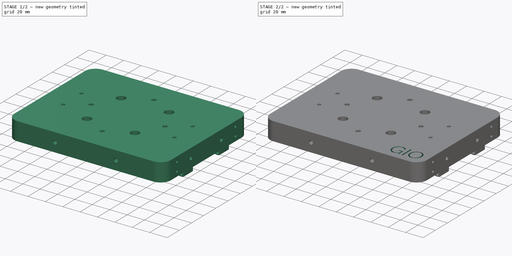
[diagram: build sequence overview — one tinted view per stage of 2, left to right]
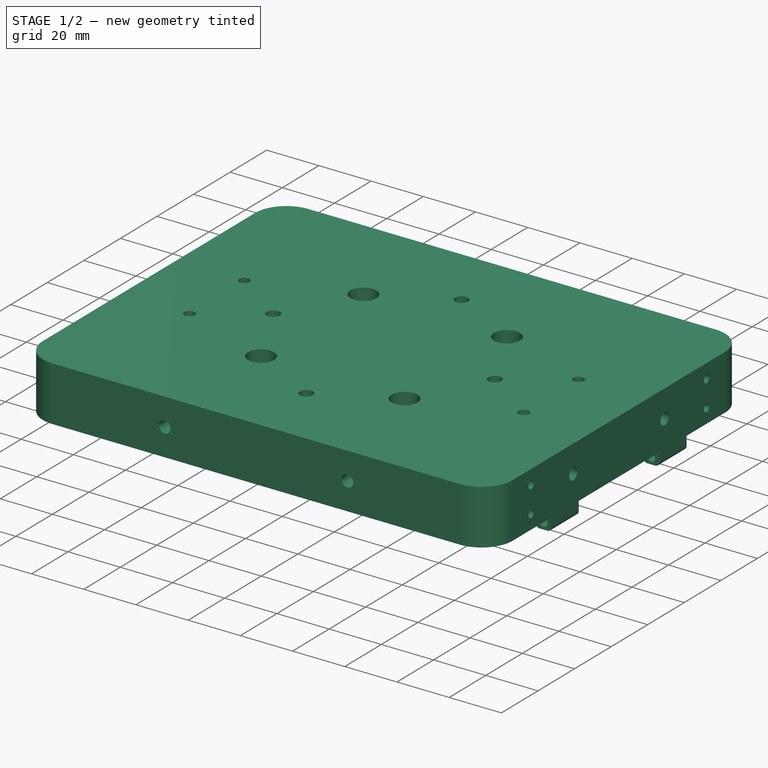
[diagram: stage 1 of 2 — iso view after this stage's code; geometry added in this stage tinted green]
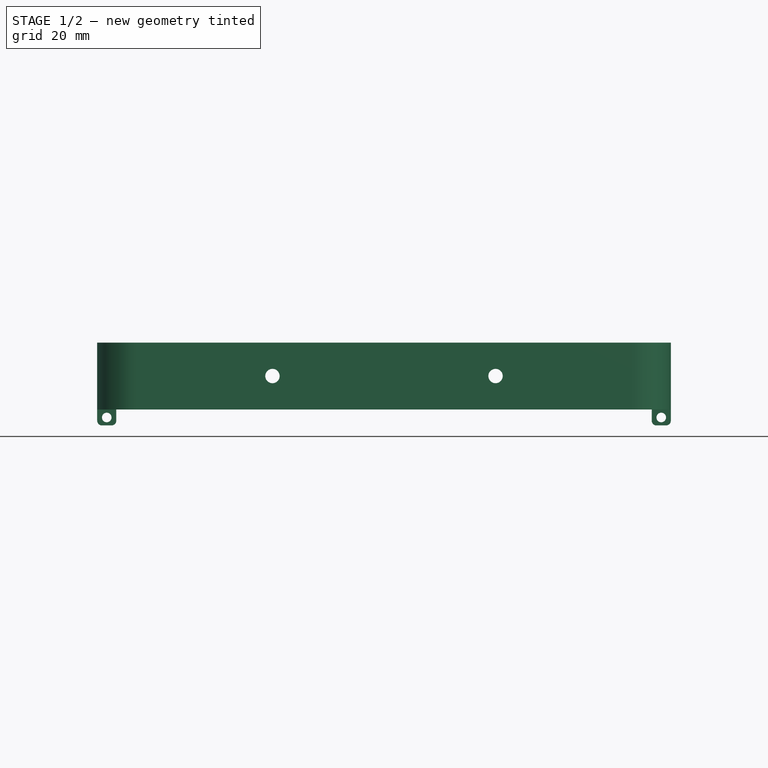
[diagram: stage 1 of 2 — front view after this stage's code; geometry added in this stage tinted green]
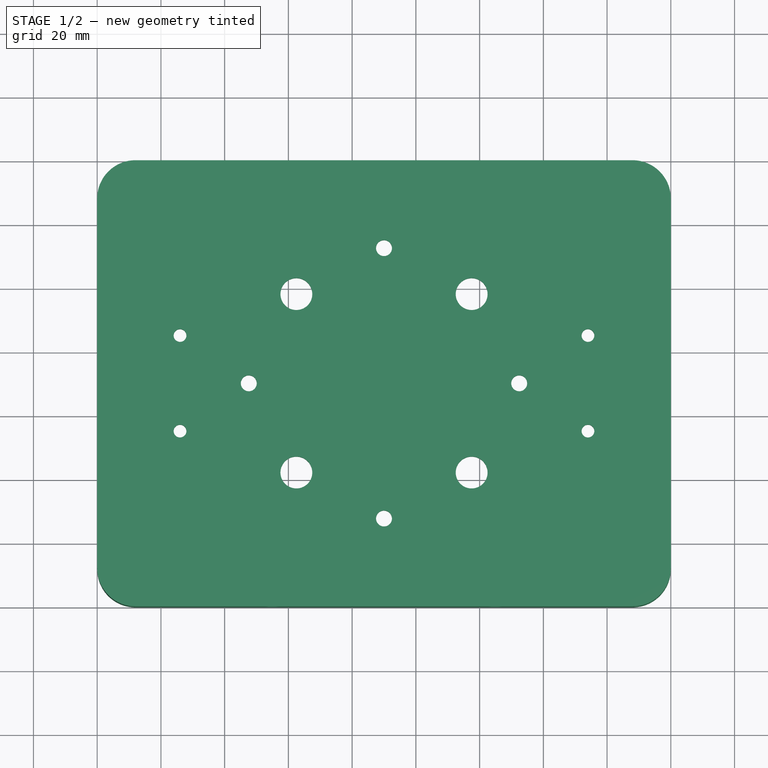
[diagram: stage 1 of 2 — top view after this stage's code; geometry added in this stage tinted green]
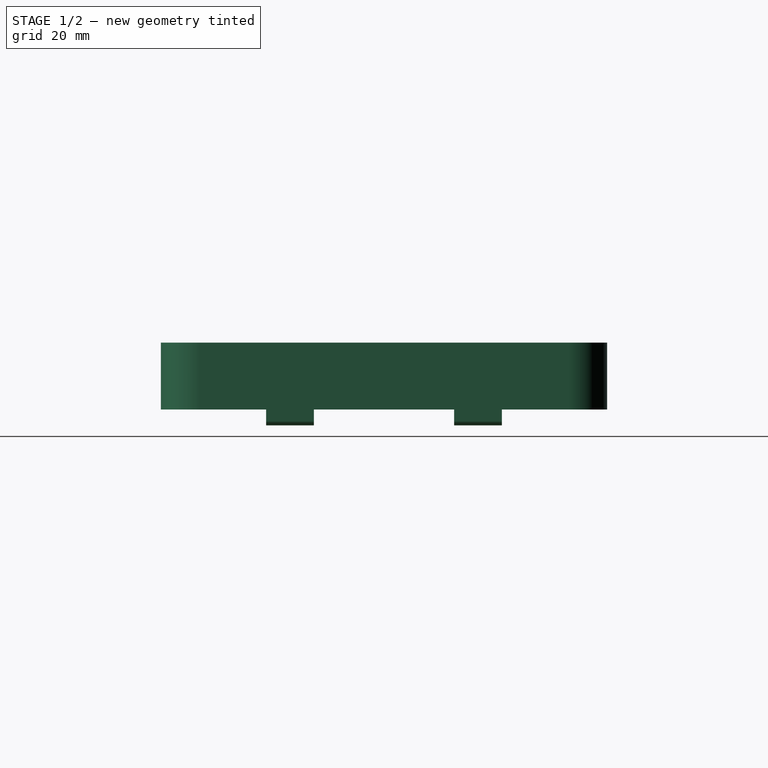
[diagram: stage 1 of 2 — right view after this stage's code; geometry added in this stage tinted green]
FCSTD DOCUMENT  (FreeCAD 0.17R13541 (Git))
Label: CodenameStalinv1
License: Other
LicenseURL: https://www.gnu.org/licenses/gpl-2.0.html
objects: Sketcher::SketchObject×13, Part::Feature×13, PartDesign::Pocket×10, PartDesign::Fillet×3, PartDesign::Pad×3, Part::MultiFuse×2, Part::Box×1, PartDesign::FeatureBase×1, Part::FeaturePython×1, PartDesign::Body×1
note: 61 computed .brp shape members not serialized (recipe doc carries the construction recipe); baked Part::Feature solids carry a one-line shape summary decoded from their .brp

FEATURE [Part::Box] Box  label="Cubo"
  AttacherType = Attacher::AttachEngine3D
  Height = 21
  Length = 180
  Width = 140
FEATURE [PartDesign::FeatureBase] BaseFeature
  BaseFeature = -> Box
FEATURE [Sketcher::SketchObject] Sketch
  ExternalGeometry = -> [BaseFeature]
  MapMode = 5
  Placement = pos=(0,0,0) rot=(1,0,0;3.14159rad)
  Support = -> [BaseFeature]
  sketch-geometry (4):
    g0: LineSegment StartX=174 StartY=-6 StartZ=0 EndX=6 EndY=-6 EndZ=0
    g1: LineSegment StartX=6 StartY=-6 StartZ=0 EndX=6 EndY=-134 EndZ=0
    g2: LineSegment StartX=6 StartY=-134 StartZ=0 EndX=174 EndY=-134 EndZ=0
    g3: LineSegment StartX=174 StartY=-134 StartZ=0 EndX=174 EndY=-6 EndZ=0
  constraints (12):
    c: Coincident(g0,g1)
    c: Coincident(g1,g2)
    c: Coincident(g2,g3)
    c: Coincident(g3,g0)
    c: Horizontal(g0)
    c: Horizontal(g2)
    c: Vertical(g1)
    c: Vertical(g3)
    c: DistanceX(g-6,g1) = 6
    c: DistanceY(g-6,g1) = 6
    c: DistanceY(g0,g-1) = 6
    c: DistanceX(g0,g-4) = 6
FEATURE [PartDesign::Pocket] Pocket
  BaseFeature = -> BaseFeature
  Length = 16
  Length2 = 100
  Profile = -> Sketch
  Type = 0
FEATURE [PartDesign::Fillet] Fillet  label="OuterFillet"
  Base = -> Pocket [Edge6,Edge11,Edge1,Edge3]
  BaseFeature = -> Pocket
  Radius = 12
FEATURE [PartDesign::Fillet] Fillet001  label="InnerFillet"
  Base = -> Fillet [Edge34,Edge32,Edge29,Edge30]
  BaseFeature = -> Fillet
  Radius = 12
FEATURE [Sketcher::SketchObject] Sketch001  label="ServoMount"
  ExternalGeometry = -> [Fillet001]
  MapMode = 5
  Placement = pos=(0,0,16) rot=(1,0,0;3.14159rad)
  Support = -> [Fillet001]
  sketch-geometry (54):
    g0: LineSegment StartX=48.5 StartY=-102 StartZ=0 EndX=48.5 EndY=-104 EndZ=0
    g1: LineSegment StartX=48.5 StartY=-104 StartZ=0 EndX=52.5 EndY=-104 EndZ=0
    g2: LineSegment StartX=52.5 StartY=-104 StartZ=0 EndX=52.5 EndY=-98 EndZ=0
    g3: LineSegment StartX=52.5 StartY=-98 StartZ=0 EndX=21 EndY=-98 EndZ=0
    g4: LineSegment StartX=21 StartY=-98 StartZ=0 EndX=21 EndY=-119 EndZ=0
    g5: LineSegment StartX=21 StartY=-119 StartZ=0 EndX=52.5 EndY=-119 EndZ=0
    g6: LineSegment StartX=52.5 StartY=-119 StartZ=0 EndX=52.5 EndY=-113 EndZ=0
    g7: LineSegment StartX=52.5 StartY=-113 StartZ=0 EndX=48.5 EndY=-113 EndZ=0
    g8: LineSegment StartX=48.5 StartY=-113 StartZ=0 EndX=48.5 EndY=-115 EndZ=0
    g9: LineSegment StartX=48.5 StartY=-115 StartZ=0 EndX=25 EndY=-115 EndZ=0
    g10: LineSegment StartX=25 StartY=-115 StartZ=0 EndX=25 EndY=-102 EndZ=0
    g11: LineSegment StartX=25 StartY=-102 StartZ=0 EndX=48.5 EndY=-102 EndZ=0
    g12: GeomPoint X=6 Y=-70 Z=0
    g13: GeomPoint X=174 Y=-70 Z=0
    g14: LineSegment [constr] StartX=6 StartY=-70 StartZ=0 EndX=174 EndY=-70 EndZ=0
    g15: LineSegment StartX=48.5 StartY=-36 StartZ=0 EndX=52.5 EndY=-36 EndZ=0
    g16: LineSegment StartX=52.5 StartY=-36 StartZ=0 EndX=52.5 EndY=-42 EndZ=0
    g17: LineSegment StartX=52.5 StartY=-42 StartZ=0 EndX=21 EndY=-42 EndZ=0
    g18: LineSegment StartX=21 StartY=-42 StartZ=0 EndX=21 EndY=-21 EndZ=0
    g19: LineSegment StartX=21 StartY=-21 StartZ=0 EndX=52.5 EndY=-21 EndZ=0
    g20: LineSegment StartX=52.5 StartY=-21 StartZ=0 EndX=52.5 EndY=-27 EndZ=0
    g21: LineSegment StartX=48.5 StartY=-27 StartZ=0 EndX=48.5 EndY=-25 EndZ=0
    g22: LineSegment StartX=48.5 StartY=-25 StartZ=0 EndX=25 EndY=-25 EndZ=0
    g23: LineSegment StartX=25 StartY=-25 StartZ=0 EndX=25 EndY=-38 EndZ=0
    g24: LineSegment StartX=25 StartY=-38 StartZ=0 EndX=48.5 EndY=-38 EndZ=0
    g25: LineSegment StartX=48.5 StartY=-38 StartZ=0 EndX=48.5 EndY=-36 EndZ=0
    g26: LineSegment StartX=48.5 StartY=-27 StartZ=0 EndX=52.5 EndY=-27 EndZ=0
    g27: GeomPoint X=90 Y=-6 Z=0
    g28: GeomPoint X=90 Y=-134 Z=0
    g29: LineSegment [constr] StartX=90 StartY=-6 StartZ=0 EndX=90 EndY=-134 EndZ=0
    g30: LineSegment StartX=127.5 StartY=-27 StartZ=0 EndX=127.5 EndY=-21 EndZ=0
    g31: LineSegment StartX=127.5 StartY=-21 StartZ=0 EndX=159 EndY=-21 EndZ=0
    g32: LineSegment StartX=159 StartY=-21 StartZ=0 EndX=159 EndY=-42 EndZ=0
    g33: LineSegment StartX=159 StartY=-42 StartZ=0 EndX=127.5 EndY=-42 EndZ=0
    g34: LineSegment StartX=127.5 StartY=-42 StartZ=0 EndX=127.5 EndY=-36 EndZ=0
    g35: LineSegment StartX=127.5 StartY=-36 StartZ=0 EndX=131.5 EndY=-36 EndZ=0
    g36: LineSegment StartX=131.5 StartY=-36 StartZ=0 EndX=131.5 EndY=-38 EndZ=0
    g37: LineSegment StartX=131.5 StartY=-38 StartZ=0 EndX=155 EndY=-38 EndZ=0
    g38: LineSegment StartX=155 StartY=-38 StartZ=0 EndX=155 EndY=-25 EndZ=0
    g39: LineSegment StartX=155 StartY=-25 StartZ=0 EndX=131.5 EndY=-25 EndZ=0
    g40: LineSegment StartX=131.5 StartY=-25 StartZ=0 EndX=131.5 EndY=-27 EndZ=0
    g41: LineSegment StartX=131.5 StartY=-27 StartZ=0 EndX=127.5 EndY=-27 EndZ=0
    g42: LineSegment StartX=131.5 StartY=-104 StartZ=0 EndX=127.5 EndY=-104 EndZ=0
    g43: LineSegment StartX=127.5 StartY=-104 StartZ=0 EndX=127.5 EndY=-98 EndZ=0
    g44: LineSegment StartX=127.5 StartY=-98 StartZ=0 EndX=159 EndY=-98 EndZ=0
    g45: LineSegment StartX=159 StartY=-98 StartZ=0 EndX=159 EndY=-119 EndZ=0
    g46: LineSegment StartX=159 StartY=-119 StartZ=0 EndX=127.5 EndY=-119 EndZ=0
    g47: LineSegment StartX=127.5 StartY=-119 StartZ=0 EndX=127.5 EndY=-113 EndZ=0
    g48: LineSegment StartX=127.5 StartY=-113 StartZ=0 EndX=131.5 EndY=-113 EndZ=0
    g49: LineSegment StartX=131.5 StartY=-113 StartZ=0 EndX=131.5 EndY=-115 EndZ=0
    g50: LineSegment StartX=131.5 StartY=-115 StartZ=0 EndX=155 EndY=-115 EndZ=0
    g51: LineSegment StartX=155 StartY=-115 StartZ=0 EndX=155 EndY=-102 EndZ=0
    g52: LineSegment StartX=155 StartY=-102 StartZ=0 EndX=131.5 EndY=-102 EndZ=0
    g53: LineSegment StartX=131.5 StartY=-102 StartZ=0 EndX=131.5 EndY=-104 EndZ=0
  constraints (128):
    c: Coincident(g0,g1)
    c: Coincident(g1,g2)
    c: Coincident(g2,g3)
    c: Coincident(g3,g4)
    c: Coincident(g4,g5)
    c: Coincident(g5,g6)
    c: Coincident(g7,g8)
    c: Coincident(g8,g9)
    c: Coincident(g9,g10)
    c: Coincident(g10,g11)
    c: Coincident(g11,g0)
    c: Vertical(g4)
    c: Horizontal(g5)
    c: Equal(g3,g5)
    c: Horizontal(g3)
    c: Vertical(g10)
    c: Equal(g9,g11)
    c: Horizontal(g11)
    c: Horizontal(g9)
    c: Equal(g8,g0)
    c: Vertical(g8)
    c: Vertical(g0)
    c: Equal(g7,g1)
    c: Horizontal(g7)
    c: Horizontal(g1)
    c: Equal(g6,g2)
    c: Vertical(g6)
    c: DistanceX(g-3,g4) = 15
    c: DistanceY(g-6,g4) = 15
    c: DistanceX(g11,g11) = 23.5
    c: DistanceY(g10,g3) = 4
    c: DistanceX(g3,g10) = 4
    c: DistanceY(g10,g10) = 13
    c: DistanceY(g7,g0) = 9
    c: DistanceX(g1,g1) = 4
    c: PointOnObject(g12,g-3)
    c: Symmetric(g-3,g-3,g12)
    c: PointOnObject(g13,g-5)
    c: Symmetric(g-5,g-5,g13)
    c: Coincident(g13,g14)
    c: Coincident(g12,g14)
    c: Horizontal(g15)
    c: Coincident(g15,g16)
    c: Coincident(g16,g17)
    c: Coincident(g17,g18)
    c: Vertical(g18)
    c: Coincident(g18,g19)
    c: Coincident(g19,g20)
    c: Vertical(g21)
    c: Coincident(g21,g22)
    c: Horizontal(g22)
    c: Coincident(g22,g23)
    c: Coincident(g23,g24)
    c: Coincident(g24,g25)
    c: Symmetric(g3,g17,g14)
    c: Symmetric(g18,g4,g14)
    c: Symmetric(g10,g23,g14)
    c: Symmetric(g16,g2,g14)
    c: Symmetric(g15,g1,g14)
    c: Symmetric(g24,g0,g14)
    c: Symmetric(g15,g0,g14)
    c: Symmetric(g22,g9,g14)
    c: Symmetric(g21,g8,g14)
    c: Symmetric(g19,g5,g14)
    c: Coincident(g15,g25)
    c: Coincident(g26,g21)
    c: Coincident(g26,g20)
    c: Horizontal(g26)
    c: Symmetric(g-4,g-4,g27)
    c: Symmetric(g-6,g-6,g28)
    c: Coincident(g29,g27)
    c: Coincident(g29,g28)
    c: Coincident(g30,g31)
    c: Horizontal(g31)
    c: Coincident(g31,g32)
    c: Coincident(g32,g33)
    c: Horizontal(g33)
    c: Coincident(g33,g34)
    c: Coincident(g34,g35)
    c: Coincident(g35,g36)
    c: Coincident(g36,g37)
    c: Coincident(g37,g38)
    c: Coincident(g38,g39)
    c: Horizontal(g39)
    c: Coincident(g39,g40)
    c: Coincident(g40,g41)
    c: Coincident(g41,g30)
    c: Symmetric(g18,g31,g29)
    c: Symmetric(g30,g19,g29)
    c: Symmetric(g38,g22,g29)
    c: Symmetric(g39,g21,g29)
    c: Symmetric(g40,g21,g29)
    c: Symmetric(g30,g20,g29)
    c: Symmetric(g37,g23,g29)
    c: Symmetric(g32,g17,g29)
    c: Symmetric(g33,g16,g29)
    c: Symmetric(g34,g15,g29)
    c: Symmetric(g35,g15,g29)
    c: Symmetric(g36,g24,g29)
    c: Symmetric(g6,g20,g14)
    c: Symmetric(g21,g7,g14)
    c: Vertical(g16)
    c: Coincident(g42,g43)
    c: Coincident(g43,g44)
    c: Coincident(g44,g45)
    c: Coincident(g45,g46)
    c: Horizontal(g46)
    c: Coincident(g46,g47)
    c: Coincident(g47,g48)
    c: Coincident(g48,g49)
    c: Coincident(g49,g50)
    c: Coincident(g50,g51)
    c: Vertical(g51)
    c: Coincident(g51,g52)
    c: Coincident(g52,g53)
    c: Coincident(g53,g42)
    c: Symmetric(g33,g43,g14)
    c: Symmetric(g42,g34,g14)
    c: Symmetric(g42,g35,g14)
    c: Symmetric(g52,g36,g14)
    c: Symmetric(g44,g32,g14)
    c: Symmetric(g51,g37,g14)
    c: Symmetric(g31,g45,g14)
    c: Symmetric(g50,g38,g14)
    c: Symmetric(g39,g49,g14)
    c: Symmetric(g48,g40,g14)
    c: Symmetric(g47,g30,g14)
    c: Symmetric(g46,g30,g14)
FEATURE [PartDesign::Pad] Pad  label="ServoPad"
  BaseFeature = -> Fillet001
  Length = 6
  Length2 = 100
  Profile = -> Sketch001
  Type = 0
FEATURE [Sketcher::SketchObject] Sketch002  label="ServoMountTop"
  ExternalGeometry = -> [Pad]
  MapMode = 5
  Placement = pos=(0,0,10) rot=(1,0,0;3.14159rad)
  Support = -> [Pad]
  sketch-geometry (32):
    g0: LineSegment StartX=21 StartY=-21 StartZ=0 EndX=52.5 EndY=-21 EndZ=0
    g1: LineSegment StartX=52.5 StartY=-21 StartZ=0 EndX=52.5 EndY=-42 EndZ=0
    g2: LineSegment StartX=52.5 StartY=-42 StartZ=0 EndX=21 EndY=-42 EndZ=0
    g3: LineSegment StartX=21 StartY=-42 StartZ=0 EndX=21 EndY=-21 EndZ=0
    g4: LineSegment StartX=127.5 StartY=-21 StartZ=0 EndX=159 EndY=-21 EndZ=0
    g5: LineSegment StartX=159 StartY=-21 StartZ=0 EndX=159 EndY=-42 EndZ=0
    g6: LineSegment StartX=159 StartY=-42 StartZ=0 EndX=127.5 EndY=-42 EndZ=0
    g7: LineSegment StartX=127.5 StartY=-42 StartZ=0 EndX=127.5 EndY=-21 EndZ=0
    g8: LineSegment StartX=25 StartY=-25 StartZ=0 EndX=50 EndY=-25 EndZ=0
    g9: LineSegment StartX=50 StartY=-25 StartZ=0 EndX=50 EndY=-38 EndZ=0
    g10: LineSegment StartX=50 StartY=-38 StartZ=0 EndX=25 EndY=-38 EndZ=0
    g11: LineSegment StartX=25 StartY=-38 StartZ=0 EndX=25 EndY=-25 EndZ=0
    g12: LineSegment StartX=130 StartY=-25 StartZ=0 EndX=155 EndY=-25 EndZ=0
    g13: LineSegment StartX=155 StartY=-25 StartZ=0 EndX=155 EndY=-38 EndZ=0
    g14: LineSegment StartX=155 StartY=-38 StartZ=0 EndX=130 EndY=-38 EndZ=0
    g15: LineSegment StartX=130 StartY=-38 StartZ=0 EndX=130 EndY=-25 EndZ=0
    g16: LineSegment StartX=21 StartY=-98 StartZ=0 EndX=52.5 EndY=-98 EndZ=0
    g17: LineSegment StartX=52.5 StartY=-98 StartZ=0 EndX=52.5 EndY=-119 EndZ=0
    g18: LineSegment StartX=52.5 StartY=-119 StartZ=0 EndX=21 EndY=-119 EndZ=0
    g19: LineSegment StartX=21 StartY=-119 StartZ=0 EndX=21 EndY=-98 EndZ=0
    g20: LineSegment StartX=25 StartY=-102 StartZ=0 EndX=50 EndY=-102 EndZ=0
    g21: LineSegment StartX=50 StartY=-102 StartZ=0 EndX=50 EndY=-115 EndZ=0
    g22: LineSegment StartX=50 StartY=-115 StartZ=0 EndX=25 EndY=-115 EndZ=0
    g23: LineSegment StartX=25 StartY=-115 StartZ=0 EndX=25 EndY=-102 EndZ=0
    g24: LineSegment StartX=127.5 StartY=-98 StartZ=0 EndX=159 EndY=-98 EndZ=0
    g25: LineSegment StartX=159 StartY=-98 StartZ=0 EndX=159 EndY=-119 EndZ=0
    g26: LineSegment StartX=159 StartY=-119 StartZ=0 EndX=127.5 EndY=-119 EndZ=0
    g27: LineSegment StartX=127.5 StartY=-119 StartZ=0 EndX=127.5 EndY=-98 EndZ=0
    g28: LineSegment StartX=130 StartY=-102 StartZ=0 EndX=155 EndY=-102 EndZ=0
    g29: LineSegment StartX=155 StartY=-102 StartZ=0 EndX=155 EndY=-115 EndZ=0
    g30: LineSegment StartX=155 StartY=-115 StartZ=0 EndX=130 EndY=-115 EndZ=0
    g31: LineSegment StartX=130 StartY=-115 StartZ=0 EndX=130 EndY=-102 EndZ=0
  constraints (84):
    c: Coincident(g0,g1)
    c: Coincident(g1,g2)
    c: Coincident(g2,g3)
    c: Coincident(g3,g0)
    c: Horizontal(g0)
    c: Horizontal(g2)
    c: Vertical(g1)
    c: Vertical(g3)
    c: Coincident(g4,g5)
    c: Coincident(g5,g6)
    c: Coincident(g6,g7)
    c: Coincident(g7,g4)
    c: Horizontal(g4)
    c: Horizontal(g6)
    c: Vertical(g5)
    c: Vertical(g7)
    c: Coincident(g8,g9)
    c: Coincident(g9,g10)
    c: Coincident(g10,g11)
    c: Coincident(g11,g8)
    c: Horizontal(g8)
    c: Horizontal(g10)
    c: Vertical(g9)
    c: Vertical(g11)
    c: Coincident(g12,g13)
    c: Coincident(g13,g14)
    c: Coincident(g14,g15)
    c: Coincident(g15,g12)
    c: Horizontal(g12)
    c: Horizontal(g14)
    c: Vertical(g13)
    c: Vertical(g15)
    c: Coincident(g16,g17)
    c: Coincident(g17,g18)
    c: Coincident(g18,g19)
    c: Coincident(g19,g16)
    c: Horizontal(g16)
    c: Horizontal(g18)
    c: Vertical(g17)
    c: Vertical(g19)
    c: Coincident(g20,g21)
    c: Coincident(g21,g22)
    c: Coincident(g22,g23)
    c: Coincident(g23,g20)
    c: Horizontal(g20)
    c: Horizontal(g22)
    c: Vertical(g21)
    c: Vertical(g23)
    c: Coincident(g24,g25)
    c: Coincident(g25,g26)
    c: Coincident(g26,g27)
    c: Coincident(g27,g24)
    c: Horizontal(g24)
    c: Horizontal(g26)
    c: Vertical(g25)
    c: Vertical(g27)
    c: Coincident(g28,g29)
    c: Coincident(g29,g30)
    c: Coincident(g30,g31)
    c: Coincident(g31,g28)
    c: Horizontal(g28)
    c: Horizontal(g30)
    c: Vertical(g29)
    c: Vertical(g31)
    c: Coincident(g16,g-3)
    c: Coincident(g17,g-4)
    c: Coincident(g20,g-5)
    c: Coincident(g22,g-6)
    c: Distance(g-5,g20) = 1.5
    c: Coincident(g24,g-8)
    c: Coincident(g25,g-7)
    c: Coincident(g29,g-10)
    c: Coincident(g28,g-9)
    c: Distance(g28,g-9) = 1.5
    c: Coincident(g0,g-11)
    c: Coincident(g1,g-12)
    c: Coincident(g8,g-13)
    c: Coincident(g-14,g10)
    c: Distance(g-13,g8) = 1.5
    c: Coincident(g4,g-15)
    c: Coincident(g5,g-16)
    c: Coincident(g12,g-17)
    c: Coincident(g13,g-18)
    c: Distance(g12,g-17) = 1.5
FEATURE [PartDesign::Pad] Pad001  label="ServoTop"
  BaseFeature = -> Pad
  Length = 10
  Length2 = 100
  Profile = -> Sketch002
  Type = 0
FEATURE [Sketcher::SketchObject] Sketch003  label="ServoScrews"
  ExternalGeometry = -> [Pad001]
  MapMode = 5
  Placement = pos=(0,0,0) rot=(1,0,0;3.14159rad)
  Support = -> [Pad001]
  sketch-geometry (16):
    g0: Circle CenterX=157 CenterY=-31.5 CenterZ=0 NormalX=0 NormalY=0 NormalZ=1 AngleXU=0 Radius=0.8
    g1: LineSegment [constr] StartX=159 StartY=-31.5 StartZ=0 EndX=155 EndY=-31.5 EndZ=0
    g2: Circle CenterX=128.75 CenterY=-31.5 CenterZ=0 NormalX=0 NormalY=0 NormalZ=1 AngleXU=0 Radius=0.8
    g3: LineSegment [constr] StartX=127.5 StartY=-31.5 StartZ=0 EndX=130 EndY=-31.5 EndZ=0
    g4: Circle CenterX=128.75 CenterY=-108.5 CenterZ=0 NormalX=0 NormalY=0 NormalZ=1 AngleXU=0 Radius=0.8
    g5: Circle CenterX=157 CenterY=-108.5 CenterZ=0 NormalX=0 NormalY=0 NormalZ=1 AngleXU=0 Radius=0.8
    g6: LineSegment [constr] StartX=127.5 StartY=-108.5 StartZ=0 EndX=130 EndY=-108.5 EndZ=0
    g7: LineSegment [constr] StartX=155 StartY=-108.5 StartZ=0 EndX=159 EndY=-108.5 EndZ=0
    g8: Circle CenterX=51.25 CenterY=-108.5 CenterZ=0 NormalX=0 NormalY=0 NormalZ=1 AngleXU=0 Radius=0.8
    g9: Circle CenterX=23 CenterY=-108.5 CenterZ=0 NormalX=0 NormalY=0 NormalZ=1 AngleXU=0 Radius=0.8
    g10: LineSegment [constr] StartX=52.5 StartY=-108.5 StartZ=0 EndX=50 EndY=-108.5 EndZ=0
    g11: LineSegment [constr] StartX=25 StartY=-108.5 StartZ=0 EndX=21 EndY=-108.5 EndZ=0
    g12: Circle CenterX=51.25 CenterY=-31.5 CenterZ=0 NormalX=0 NormalY=0 NormalZ=1 AngleXU=0 Radius=0.8
    g13: Circle CenterX=23 CenterY=-31.5 CenterZ=0 NormalX=0 NormalY=0 NormalZ=1 AngleXU=0 Radius=0.8
    g14: LineSegment [constr] StartX=52.5 StartY=-31.5 StartZ=0 EndX=50 EndY=-31.5 EndZ=0
    g15: LineSegment [constr] StartX=21 StartY=-31.5 StartZ=0 EndX=25 EndY=-31.5 EndZ=0
  constraints (32):
    c: Symmetric(g15,g15,g13)
    c: Symmetric(g14,g14,g12)
    c: Radius(g12) = 0.8
    c: Symmetric(g3,g3,g2)
    c: Symmetric(g1,g1,g0)
    c: Symmetric(g6,g6,g4)
    c: Symmetric(g7,g7,g5)
    c: Symmetric(g11,g11,g9)
    c: Symmetric(g10,g10,g8)
    c: Equal(g13,g12)
    c: Equal(g12,g0)
    c: Equal(g2,g0)
    c: Equal(g0,g5)
    c: Equal(g4,g5)
    c: Equal(g5,g8)
    c: Equal(g9,g8)
    c: Symmetric(g-15,g-15,g6)
    c: Symmetric(g-16,g-16,g6)
    c: Symmetric(g-17,g-17,g7)
    c: Symmetric(g-18,g-18,g7)
    c: Symmetric(g-11,g-11,g3)
    c: Symmetric(g-12,g-12,g3)
    c: Symmetric(g-13,g-13,g1)
    c: Symmetric(g-14,g-14,g1)
    c: Symmetric(g-3,g-3,g15)
    c: Symmetric(g-4,g-4,g15)
    c: Symmetric(g-5,g-5,g14)
    c: Symmetric(g-6,g-6,g14)
    c: Symmetric(g-7,g-7,g11)
    c: Symmetric(g-10,g-10,g10)
    c: Symmetric(g-8,g-8,g11)
    c: Symmetric(g-9,g-9,g10)
FEATURE [PartDesign::Pocket] Pocket001  label="ServoScrewsPocket"
  BaseFeature = -> Pad001
  Length = 6
  Length2 = 100
  Profile = -> Sketch003
  Type = 0
FEATURE [Sketcher::SketchObject] Sketch004  label="CableHoles01"
  ExternalGeometry = -> [Pocket001]
  MapMode = 5
  Placement = pos=(0,0,16) rot=(1,0,0;3.14159rad)
  Support = -> [Pocket001]
  sketch-geometry (4):
    g0: Circle CenterX=117.5 CenterY=-42 CenterZ=0 NormalX=0 NormalY=0 NormalZ=1 AngleXU=0 Radius=5
    g1: Circle CenterX=62.5 CenterY=-42 CenterZ=0 NormalX=0 NormalY=0 NormalZ=1 AngleXU=0 Radius=5
    g2: Circle CenterX=62.5 CenterY=-98 CenterZ=0 NormalX=0 NormalY=0 NormalZ=1 AngleXU=0 Radius=5
    g3: Circle CenterX=117.5 CenterY=-98 CenterZ=0 NormalX=0 NormalY=0 NormalZ=1 AngleXU=0 Radius=5
  constraints (12):
    c: Radius(g0) = 5
    c: Equal(g0,g1)
    c: Equal(g0,g3)
    c: Equal(g0,g2)
    c: Horizontal(g2,g-5)
    c: Horizontal(g3,g-6)
    c: Horizontal(g-3,g1)
    c: Horizontal(g0,g-4)
    c: DistanceX(g-5,g2) = 10
    c: DistanceX(g3,g-6) = 10
    c: Distance(g-3,g1) = 10
    c: DistanceX(g0,g-4) = 10
FEATURE [PartDesign::Pocket] Pocket002  label="CablePocket01"
  BaseFeature = -> Pocket001
  Length = 5
  Length2 = 100
  Profile = -> Sketch004
  Type = 1
FEATURE [Sketcher::SketchObject] Sketch005  label="Bisagra"
  ExternalGeometry = -> [Pocket002]
  MapMode = 5
  Placement = pos=(0,0,0) rot=(1,0,0;3.14159rad)
  Support = -> [Pocket002]
  sketch-geometry (23):
    g0: LineSegment [constr] StartX=6 StartY=-18 StartZ=0 EndX=0 EndY=-18 EndZ=0
    g1: GeomPoint X=3 Y=-18 Z=0
    g2: GeomPoint X=1.5 Y=-18 Z=0
    g3: GeomPoint X=4.5 Y=-18 Z=0
    g4: LineSegment [constr] StartX=3 StartY=-18 StartZ=0 EndX=3 EndY=-122 EndZ=0
    g5: LineSegment [constr] StartX=6 StartY=-122 StartZ=0 EndX=0 EndY=-122 EndZ=0
    g6: LineSegment StartX=0 StartY=-48 StartZ=0 EndX=6 EndY=-48 EndZ=0
    g7: LineSegment StartX=6 StartY=-48 StartZ=0 EndX=6 EndY=-33 EndZ=0
    g8: LineSegment StartX=6 StartY=-33 StartZ=0 EndX=0 EndY=-33 EndZ=0
    g9: LineSegment StartX=0 StartY=-33 StartZ=0 EndX=0 EndY=-48 EndZ=0
    g10: LineSegment StartX=0 StartY=-107 StartZ=0 EndX=6 EndY=-107 EndZ=0
    g11: LineSegment StartX=6 StartY=-107 StartZ=0 EndX=6 EndY=-92 EndZ=0
    g12: LineSegment StartX=6 StartY=-92 StartZ=0 EndX=0 EndY=-92 EndZ=0
    g13: LineSegment StartX=0 StartY=-92 StartZ=0 EndX=0 EndY=-107 EndZ=0
    g14: LineSegment [constr] StartX=90 StartY=-6 StartZ=0 EndX=90 EndY=-134 EndZ=0
    g15: LineSegment StartX=174 StartY=-33 StartZ=0 EndX=180 EndY=-33 EndZ=0
    g16: LineSegment StartX=180 StartY=-33 StartZ=0 EndX=180 EndY=-48 EndZ=0
    g17: LineSegment StartX=180 StartY=-48 StartZ=0 EndX=174 EndY=-48 EndZ=0
    g18: LineSegment StartX=174 StartY=-48 StartZ=0 EndX=174 EndY=-33 EndZ=0
    g19: LineSegment StartX=174 StartY=-92 StartZ=0 EndX=180 EndY=-92 EndZ=0
    g20: LineSegment StartX=180 StartY=-92 StartZ=0 EndX=180 EndY=-107 EndZ=0
    g21: LineSegment StartX=180 StartY=-107 StartZ=0 EndX=174 EndY=-107 EndZ=0
    g22: LineSegment StartX=174 StartY=-107 StartZ=0 EndX=174 EndY=-92 EndZ=0
  constraints (65):
    c: Coincident(g0,g-3)
    c: PointOnObject(g0,g-4)
    c: Horizontal(g0)
    c: PointOnObject(g2,g0)
    c: PointOnObject(g3,g0)
    c: Symmetric(g0,g0,g1)
    c: Symmetric(g1,g0,g3)
    c: Symmetric(g0,g1,g2)
    c: Vertical(g4)
    c: Vertical(g1,g4)
    c: Coincident(g1,g4)
    c: Coincident(g5,g-3)
    c: PointOnObject(g5,g-4)
    c: Horizontal(g5)
    c: PointOnObject(g4,g5)
    c: Coincident(g6,g7)
    c: Coincident(g7,g8)
    c: Coincident(g8,g9)
    c: Coincident(g9,g6)
    c: Horizontal(g6)
    c: Horizontal(g8)
    c: Vertical(g7)
    c: Vertical(g9)
    c: DistanceY(g8,g0) = 15
    c: PointOnObject(g8,g-4)
    c: PointOnObject(g7,g-3)
    c: DistanceY(g9,g9) = 15
    c: Coincident(g10,g11)
    c: Coincident(g11,g12)
    c: Coincident(g12,g13)
    c: Coincident(g13,g10)
    c: Horizontal(g10)
    c: Horizontal(g12)
    c: Vertical(g11)
    c: Vertical(g13)
    c: PointOnObject(g10,g-4)
    c: PointOnObject(g11,g-3)
    c: DistanceY(g5,g10) = 15
    c: DistanceY(g13,g13) = 15
    c: PointOnObject(g14,g-5)
    c: PointOnObject(g14,g-6)
    c: Vertical(g14)
    c: Symmetric(g-5,g-5,g14)
    c: Coincident(g15,g16)
    c: Coincident(g16,g17)
    c: Coincident(g17,g18)
    c: Coincident(g18,g15)
    c: Horizontal(g15)
    c: Horizontal(g17)
    c: Vertical(g16)
    c: Vertical(g18)
    c: Coincident(g19,g20)
    c: Coincident(g20,g21)
    c: Coincident(g21,g22)
    c: Coincident(g22,g19)
    c: Horizontal(g19)
    c: Horizontal(g21)
    c: Vertical(g20)
    c: Vertical(g22)
    c: Equal(g11,g22)
    c: Equal(g19,g12)
    c: Equal(g17,g6)
    c: Equal(g7,g18)
    c: Symmetric(g6,g17,g14)
    c: Symmetric(g10,g21,g14)
FEATURE [PartDesign::Pad] Pad002  label="HingeBase"
  BaseFeature = -> Pocket002
  Length = 5
  Length2 = 100
  Profile = -> Sketch005
  Type = 0
FEATURE [Sketcher::SketchObject] Sketch006  label="HingeHoleS"
  ExternalGeometry = -> [Pad002]
  MapMode = 5
  Placement = pos=(0,107,0) rot=(0,0.707107,0.707107;3.14159rad)
  Support = -> [Pad002]
  sketch-geometry (4):
    g0: LineSegment [constr] StartX=0 StartY=-2.5 StartZ=0 EndX=-6 EndY=-2.5 EndZ=0
    g1: Circle CenterX=-3 CenterY=-2.5 CenterZ=0 NormalX=0 NormalY=0 NormalZ=1 AngleXU=0 Radius=1.5
    g2: LineSegment [constr] StartX=-174 StartY=-2.5 StartZ=0 EndX=-180 EndY=-2.5 EndZ=0
    g3: Circle CenterX=-177 CenterY=-2.5 CenterZ=0 NormalX=0 NormalY=0 NormalZ=1 AngleXU=0 Radius=1.5
  constraints (14):
    c: PointOnObject(g0,g-5)
    c: PointOnObject(g0,g-4)
    c: Horizontal(g0)
    c: Symmetric(g-4,g-4,g0)
    c: PointOnObject(g1,g0)
    c: Radius(g1) = 1.5
    c: PointOnObject(g2,g-7)
    c: PointOnObject(g2,g-8)
    c: Horizontal(g2)
    c: Symmetric(g-8,g-8,g2)
    c: PointOnObject(g3,g2)
    c: Symmetric(g2,g2,g3)
    c: Radius(g3) = 1.5
    c: Symmetric(g0,g0,g1)
FEATURE [PartDesign::Pocket] Pocket003  label="HingePocket"
  BaseFeature = -> Pad002
  Length = 5
  Length2 = 100
  Profile = -> Sketch006
  Type = 1
FEATURE [PartDesign::Fillet] Fillet002
  Base = -> Pocket003 [Edge149,Edge161,Edge153,Edge155,Edge128,Edge131,Edge145,Edge124]
  BaseFeature = -> Pocket003
  Radius = 1.5
FEATURE [Sketcher::SketchObject] Sketch007  label="FrontalHoles"
  ExternalGeometry = -> [Fillet002]
  MapMode = 5
  Placement = pos=(180,0,0) rot=(0.57735,0.57735,0.57735;2.0944rad)
  Support = -> [Fillet002]
  sketch-geometry (12):
    g0: Circle CenterX=45 CenterY=10.5 CenterZ=0 NormalX=0 NormalY=0 NormalZ=1 AngleXU=0 Radius=2.25
    g1: Circle CenterX=95 CenterY=10.5 CenterZ=0 NormalX=0 NormalY=0 NormalZ=1 AngleXU=0 Radius=2.25
    g2: GeomPoint X=70 Y=10.5 Z=0
    g3: GeomPoint X=12 Y=10.5 Z=0
    g4: GeomPoint X=128 Y=10.5 Z=0
    g5: LineSegment [constr] StartX=12 StartY=10.5 StartZ=0 EndX=128 EndY=10.5 EndZ=0
    g6: Circle CenterX=118 CenterY=15.5 CenterZ=0 NormalX=0 NormalY=0 NormalZ=1 AngleXU=0 Radius=1.5
    g7: Circle CenterX=118 CenterY=5.5 CenterZ=0 NormalX=0 NormalY=0 NormalZ=1 AngleXU=0 Radius=1.5
    g8: GeomPoint X=118 Y=10.5 Z=0
    g9: Circle CenterX=22 CenterY=15.5 CenterZ=0 NormalX=0 NormalY=0 NormalZ=1 AngleXU=0 Radius=1.5
    g10: Circle CenterX=22 CenterY=5.5 CenterZ=0 NormalX=0 NormalY=0 NormalZ=1 AngleXU=0 Radius=1.5
    g11: GeomPoint X=22 Y=10.5 Z=0
  constraints (26):
    c: DistanceX(g0,g1) = 50
    c: Symmetric(g0,g1,g2)
    c: PointOnObject(g3,g-3)
    c: PointOnObject(g4,g-4)
    c: Symmetric(g-4,g-4,g4)
    c: Symmetric(g-3,g-3,g3)
    c: Symmetric(g3,g4,g2)
    c: Horizontal(g0,g1)
    c: Equal(g1,g0)
    c: Radius(g1) = 2.25
    c: Coincident(g5,g3)
    c: Coincident(g5,g4)
    c: Vertical(g6,g7)
    c: Equal(g6,g7)
    c: PointOnObject(g8,g5)
    c: Symmetric(g6,g7,g8)
    c: Distance(g8,g4) = 10
    c: Distance(g6,g8) = 5
    c: Radius(g6) = 1.5
    c: PointOnObject(g11,g5)
    c: Equal(g9,g10)
    c: Distance(g11,g3) = 10
    c: Symmetric(g10,g9,g11)
    c: Vertical(g9,g10)
    c: Distance(g9,g11) = 5
    c: Radius(g9) = 1.5
FEATURE [PartDesign::Pocket] Pocket004  label="FrontHolesPocket"
  BaseFeature = -> Fillet002
  Length = 6
  Length2 = 100
  Profile = -> Sketch007
  Type = 0
FEATURE [Sketcher::SketchObject] Sketch008  label="RightHoles"
  ExternalGeometry = -> [Pocket004]
  MapMode = 5
  Placement = pos=(0,140,0) rot=(0,0.707107,0.707107;3.14159rad)
  Support = -> [Pocket004]
  sketch-geometry (5):
    g0: Circle CenterX=-125 CenterY=10.5 CenterZ=0 NormalX=0 NormalY=0 NormalZ=1 AngleXU=0 Radius=2.25
    g1: Circle CenterX=-55 CenterY=10.5 CenterZ=0 NormalX=0 NormalY=0 NormalZ=1 AngleXU=0 Radius=2.25
    g2: GeomPoint X=-168 Y=10.5 Z=0
    g3: GeomPoint X=-12 Y=10.5 Z=0
    g4: GeomPoint X=-90 Y=10.5 Z=0
  constraints (8):
    c: Equal(g0,g1)
    c: Radius(g0) = 2.25
    c: Horizontal(g0,g1)
    c: DistanceX(g0,g1) = 70
    c: Symmetric(g2,g3,g4)
    c: Symmetric(g0,g1,g4)
    c: Symmetric(g-4,g-4,g3)
    c: Symmetric(g-3,g-3,g2)
FEATURE [Part::Feature] path5088
  shape: bbox 9.209 x 15.19 x 2e-07 mm, 0 faces, 0 solids (baked)
FEATURE [Part::Feature] path5090
  shape: bbox 2.367 x 2.264 x 2e-07 mm, 0 faces, 0 solids (baked)
FEATURE [Part::Feature] path5092
  shape: bbox 9.219 x 14.98 x 2e-07 mm, 0 faces, 0 solids (baked)
FEATURE [Part::Feature] path5092001
  shape: bbox 4.877 x 5.68 x 2e-07 mm, 0 faces, 0 solids (baked)
FEATURE [Part::Feature] path5094
  shape: bbox 2.367 x 2.264 x 2e-07 mm, 0 faces, 0 solids (baked)
FEATURE [Part::Feature] path5096
  shape: bbox 9.188 x 15.39 x 2e-07 mm, 0 faces, 0 solids (baked)
FEATURE [Part::Feature] path5098
  shape: bbox 2.367 x 2.264 x 2e-07 mm, 0 faces, 0 solids (baked)
FEATURE [Part::Feature] path5100
  shape: bbox 9.188 x 15.39 x 2e-07 mm, 0 faces, 0 solids (baked)
FEATURE [Part::Feature] path5102
  shape: bbox 2.367 x 2.264 x 2e-07 mm, 0 faces, 0 solids (baked)
FEATURE [Part::MultiFuse] Fusion  label="URSS_Fusion"
  Shapes = -> [path5088,path5090,path5092,path5092001,path5094,path5096,path5098,path5100,path5102]
FEATURE [Part::FeaturePython] Scale  label="URSS_Scale"  # Draft clone (typed FeaturePython)
  Fuse = false
  Objects = -> [Fusion]
  Placement = pos=(-4.47205,93.843,16) rot=(-0.57735,0.57735,0.57735;4.18879rad)
  Scale = (0.75,0.75,1)
FEATURE [Part::Feature] path5701
  shape: bbox 13.04 x 15.17 x 2e-07 mm, 0 faces, 0 solids (baked)
FEATURE [Part::Feature] path5703
  shape: bbox 1.475 x 14.96 x 2e-07 mm, 0 faces, 0 solids (baked)
FEATURE [Part::Feature] path5705
  shape: bbox 14.03 x 15.17 x 2e-07 mm, 0 faces, 0 solids (baked)
FEATURE [Part::Feature] path5705001
  shape: bbox 11.08 x 12.5 x 2e-07 mm, 0 faces, 0 solids (baked)
FEATURE [Part::MultiFuse] Fusion001  label="GIO_Fusion"
  Placement = pos=(137.651,22.7821,21) rot=(0,0,1;0rad)
  Shapes = -> [path5701,path5703,path5705,path5705001]
FEATURE [PartDesign::Body] Body
  BaseFeature = -> Box
  Group = -> [BaseFeature,Sketch,Pocket,Fillet,Fillet001,Sketch001,Pad,Sketch002,Pad001,Sketch003,Pocket001,Sketch004,Pocket002,Sketch005,Pad002,Sketch006,Pocket003,Fillet002,Sketch007,Pocket004,Pocket008,Sketch008,Pocket005,Sketch010,Sketch012,Pocket009,Sketch013,Pocket010,Sketch015,Pocket011]
  Origin = -> Origin
  Tip = -> Pocket011
FEATURE [PartDesign::Pocket] Pocket005  label="RightHolesPocket"
  BaseFeature = -> Pocket008
  Length = 6
  Length2 = 100
  Profile = -> Sketch008
  Type = 0
FEATURE [Sketcher::SketchObject] Sketch010  label="ElectronicsMountHoles"
  ExternalGeometry = -> [Pocket005]
  MapMode = 5
  Placement = pos=(0,0,16) rot=(1,0,0;3.14159rad)
  sketch-geometry (16):
    g0: LineSegment [constr] StartX=47.5736 StartY=-70 StartZ=0 EndX=90 EndY=-112.426 EndZ=0
    g1: LineSegment [constr] StartX=90 StartY=-112.426 StartZ=0 EndX=132.426 EndY=-70 EndZ=0
    g2: LineSegment [constr] StartX=132.426 StartY=-70 StartZ=0 EndX=90 EndY=-27.5736 EndZ=0
    g3: LineSegment [constr] StartX=90 StartY=-27.5736 StartZ=0 EndX=47.5736 EndY=-70 EndZ=0
    g4: LineSegment [constr] StartX=6 StartY=-70 StartZ=0 EndX=174 EndY=-70 EndZ=0
    g5: GeomPoint X=90 Y=-70 Z=0
    g6: Circle CenterX=90 CenterY=-27.5736 CenterZ=0 NormalX=0 NormalY=0 NormalZ=1 AngleXU=0 Radius=2.5
    g7: Circle CenterX=47.5736 CenterY=-70 CenterZ=0 NormalX=0 NormalY=0 NormalZ=1 AngleXU=0 Radius=2.5
    g8: Circle CenterX=90 CenterY=-112.426 CenterZ=0 NormalX=0 NormalY=0 NormalZ=1 AngleXU=0 Radius=2.5
    g9: Circle CenterX=132.426 CenterY=-70 CenterZ=0 NormalX=0 NormalY=0 NormalZ=1 AngleXU=0 Radius=2.5
    g10: Circle CenterX=154 CenterY=-55 CenterZ=0 NormalX=0 NormalY=0 NormalZ=1 AngleXU=0 Radius=2
    g11: Circle CenterX=154 CenterY=-85 CenterZ=0 NormalX=0 NormalY=0 NormalZ=1 AngleXU=0 Radius=2
    g12: GeomPoint X=154 Y=-70 Z=0
    g13: Circle CenterX=26 CenterY=-55 CenterZ=0 NormalX=0 NormalY=0 NormalZ=1 AngleXU=0 Radius=2
    g14: Circle CenterX=26 CenterY=-85 CenterZ=0 NormalX=0 NormalY=0 NormalZ=1 AngleXU=0 Radius=2
    g15: GeomPoint X=26 Y=-70 Z=0
  constraints (39):
    c: Coincident(g0,g1)
    c: Coincident(g1,g2)
    c: Coincident(g2,g3)
    c: Coincident(g3,g0)
    c: Perpendicular(g2,g3)
    c: Perpendicular(g1,g2)
    c: Equal(g1,g3)
    c: Equal(g2,g0)
    c: Equal(g2,g3)
    c: Horizontal(g4)
    c: PointOnObject(g5,g4)
    c: Symmetric(g4,g4,g5)
    c: Symmetric(g0,g2,g5)
    c: PointOnObject(g0,g4)
    c: Distance(g2) = 60
    c: Coincident(g7,g0)
    c: Coincident(g2,g6)
    c: Coincident(g9,g1)
    c: Coincident(g8,g0)
    c: Equal(g7,g6)
    c: Equal(g6,g9)
    c: Equal(g9,g8)
    c: Radius(g7) = 2.5
    c: Symmetric(g-4,g-4,g4)
    c: Symmetric(g-3,g-3,g4)
    c: Equal(g10,g11)
    c: PointOnObject(g12,g4)
    c: Symmetric(g10,g11,g12)
    c: Radius(g10) = 2
    c: Vertical(g10,g11)
    c: Distance(g11,g10) = 30
    c: Distance(g12,g4) = 20
    c: PointOnObject(g15,g4)
    c: Symmetric(g13,g14,g15)
    c: Vertical(g13,g14)
    c: Radius(g13) = 2
    c: Equal(g13,g14)
    c: Distance(g13,g14) = 30
    c: Distance(g4,g15) = 20
FEATURE [Sketcher::SketchObject] Sketch012  label="LeftHoles"
  ExternalGeometry = -> [Pocket005]
  MapMode = 5
  Placement = pos=(0,0,0) rot=(1,0,0;1.5708rad)
  Support = -> [Pocket005]
  sketch-geometry (5):
    g0: Circle CenterX=55 CenterY=10.5 CenterZ=0 NormalX=0 NormalY=0 NormalZ=1 AngleXU=0 Radius=2.25
    g1: Circle CenterX=125 CenterY=10.5 CenterZ=0 NormalX=0 NormalY=0 NormalZ=1 AngleXU=0 Radius=2.25
    g2: GeomPoint X=12 Y=10.5 Z=0
    g3: GeomPoint X=90 Y=10.5 Z=0
    g4: GeomPoint X=168 Y=10.5 Z=0
  constraints (11):
    c: Equal(g1,g0)
    c: PointOnObject(g2,g-4)
    c: PointOnObject(g4,g-3)
    c: Symmetric(g-3,g-3,g4)
    c: Symmetric(g-4,g-4,g2)
    c: Radius(g0) = 2.25
    c: Symmetric(g2,g4,g3)
    c: Distance(g0,g1) = 70
    c: Horizontal(g0,g3)
    c: Horizontal(g3,g1)
    c: Symmetric(g0,g1,g3)
FEATURE [PartDesign::Pocket] Pocket008  label="LeftHolesPocket"
  BaseFeature = -> Pocket004
  Length = 6
  Length2 = 100
  Profile = -> Sketch012
  Type = 0
FEATURE [PartDesign::Pocket] Pocket009  label="ElectronicMountPocket"
  BaseFeature = -> Pocket005
  Length = 5
  Length2 = 100
  Profile = -> Sketch010
  Type = 0
FEATURE [Sketcher::SketchObject] Sketch013  label="URSS_Sketch"
  AttachmentOffset = pos=(0,0,0) rot=(0,0,-1;4.71239rad)
  MapMode = 5
  Placement = pos=(0,0,0) rot=(0,1,0;4.71239rad)
  Support = -> [Pocket009]
  sketch-geometry (123):
    g0: BSplineCurve PolesCount=2 KnotsCount=2 Degree=1 IsPeriodic=0
    g1: BSplineCurve PolesCount=3 KnotsCount=2 Degree=2 IsPeriodic=0
    g2: BSplineCurve PolesCount=3 KnotsCount=2 Degree=2 IsPeriodic=0
    g3: BSplineCurve PolesCount=3 KnotsCount=2 Degree=2 IsPeriodic=0
    g4: BSplineCurve PolesCount=3 KnotsCount=2 Degree=2 IsPeriodic=0
    g5: BSplineCurve PolesCount=2 KnotsCount=2 Degree=1 IsPeriodic=0
    g6: BSplineCurve PolesCount=2 KnotsCount=2 Degree=1 IsPeriodic=0
    g7: BSplineCurve PolesCount=2 KnotsCount=2 Degree=1 IsPeriodic=0
    g8: BSplineCurve PolesCount=3 KnotsCount=2 Degree=2 IsPeriodic=0
    g9: BSplineCurve PolesCount=3 KnotsCount=2 Degree=2 IsPeriodic=0
    g10: BSplineCurve PolesCount=3 KnotsCount=2 Degree=2 IsPeriodic=0
    g11: BSplineCurve PolesCount=3 KnotsCount=2 Degree=2 IsPeriodic=0
    g12: BSplineCurve PolesCount=2 KnotsCount=2 Degree=1 IsPeriodic=0
    g13: BSplineCurve PolesCount=2 KnotsCount=2 Degree=1 IsPeriodic=0
    g14: BSplineCurve PolesCount=3 KnotsCount=2 Degree=2 IsPeriodic=0
    g15: BSplineCurve PolesCount=3 KnotsCount=2 Degree=2 IsPeriodic=0
    g16: BSplineCurve PolesCount=3 KnotsCount=2 Degree=2 IsPeriodic=0
    g17: BSplineCurve PolesCount=3 KnotsCount=2 Degree=2 IsPeriodic=0
    g18: BSplineCurve PolesCount=3 KnotsCount=2 Degree=2 IsPeriodic=0
    g19: BSplineCurve PolesCount=3 KnotsCount=2 Degree=2 IsPeriodic=0
    g20: BSplineCurve PolesCount=3 KnotsCount=2 Degree=2 IsPeriodic=0
    g21: BSplineCurve PolesCount=3 KnotsCount=2 Degree=2 IsPeriodic=0
    g22: BSplineCurve PolesCount=2 KnotsCount=2 Degree=1 IsPeriodic=0
    g23: BSplineCurve PolesCount=2 KnotsCount=2 Degree=1 IsPeriodic=0
    g24: BSplineCurve PolesCount=2 KnotsCount=2 Degree=1 IsPeriodic=0
    g25: BSplineCurve PolesCount=2 KnotsCount=2 Degree=1 IsPeriodic=0
    g26: BSplineCurve PolesCount=2 KnotsCount=2 Degree=1 IsPeriodic=0
    g27: BSplineCurve PolesCount=3 KnotsCount=2 Degree=2 IsPeriodic=0
    g28: BSplineCurve PolesCount=3 KnotsCount=2 Degree=2 IsPeriodic=0
    g29: BSplineCurve PolesCount=3 KnotsCount=2 Degree=2 IsPeriodic=0
    g30: BSplineCurve PolesCount=3 KnotsCount=2 Degree=2 IsPeriodic=0
    g31: BSplineCurve PolesCount=2 KnotsCount=2 Degree=1 IsPeriodic=0
    g32: BSplineCurve PolesCount=2 KnotsCount=2 Degree=1 IsPeriodic=0
    g33: BSplineCurve PolesCount=2 KnotsCount=2 Degree=1 IsPeriodic=0
    g34: BSplineCurve PolesCount=2 KnotsCount=2 Degree=1 IsPeriodic=0
    g35: BSplineCurve PolesCount=2 KnotsCount=2 Degree=1 IsPeriodic=0
    g36: BSplineCurve PolesCount=3 KnotsCount=2 Degree=2 IsPeriodic=0
    g37: BSplineCurve PolesCount=3 KnotsCount=2 Degree=2 IsPeriodic=0
    g38: BSplineCurve PolesCount=3 KnotsCount=2 Degree=2 IsPeriodic=0
    g39: BSplineCurve PolesCount=2 KnotsCount=2 Degree=1 IsPeriodic=0
    g40: BSplineCurve PolesCount=2 KnotsCount=2 Degree=1 IsPeriodic=0
    g41: BSplineCurve PolesCount=3 KnotsCount=2 Degree=2 IsPeriodic=0
    g42: BSplineCurve PolesCount=3 KnotsCount=2 Degree=2 IsPeriodic=0
    g43: BSplineCurve PolesCount=3 KnotsCount=2 Degree=2 IsPeriodic=0
    g44: BSplineCurve PolesCount=3 KnotsCount=2 Degree=2 IsPeriodic=0
    g45: BSplineCurve PolesCount=3 KnotsCount=2 Degree=2 IsPeriodic=0
    g46: BSplineCurve PolesCount=3 KnotsCount=2 Degree=2 IsPeriodic=0
    g47: BSplineCurve PolesCount=3 KnotsCount=2 Degree=2 IsPeriodic=0
    g48: BSplineCurve PolesCount=3 KnotsCount=2 Degree=2 IsPeriodic=0
    g49: BSplineCurve PolesCount=3 KnotsCount=2 Degree=2 IsPeriodic=0
    g50: BSplineCurve PolesCount=3 KnotsCount=2 Degree=2 IsPeriodic=0
    g51: BSplineCurve PolesCount=3 KnotsCount=2 Degree=2 IsPeriodic=0
    g52: BSplineCurve PolesCount=3 KnotsCount=2 Degree=2 IsPeriodic=0
    g53: BSplineCurve PolesCount=3 KnotsCount=2 Degree=2 IsPeriodic=0
    g54: BSplineCurve PolesCount=3 KnotsCount=2 Degree=2 IsPeriodic=0
    g55: BSplineCurve PolesCount=3 KnotsCount=2 Degree=2 IsPeriodic=0
    g56: BSplineCurve PolesCount=3 KnotsCount=2 Degree=2 IsPeriodic=0
    g57: BSplineCurve PolesCount=3 KnotsCount=2 Degree=2 IsPeriodic=0
    g58: BSplineCurve PolesCount=3 KnotsCount=2 Degree=2 IsPeriodic=0
    g59: BSplineCurve PolesCount=2 KnotsCount=2 Degree=1 IsPeriodic=0
    g60: BSplineCurve PolesCount=3 KnotsCount=2 Degree=2 IsPeriodic=0
    g61: BSplineCurve PolesCount=3 KnotsCount=2 Degree=2 IsPeriodic=0
    g62: BSplineCurve PolesCount=3 KnotsCount=2 Degree=2 IsPeriodic=0
    g63: BSplineCurve PolesCount=3 KnotsCount=2 Degree=2 IsPeriodic=0
    g64: BSplineCurve PolesCount=3 KnotsCount=2 Degree=2 IsPeriodic=0
    g65: BSplineCurve PolesCount=3 KnotsCount=2 Degree=2 IsPeriodic=0
    g66: BSplineCurve PolesCount=3 KnotsCount=2 Degree=2 IsPeriodic=0
    g67: BSplineCurve PolesCount=3 KnotsCount=2 Degree=2 IsPeriodic=0
    g68: BSplineCurve PolesCount=3 KnotsCount=2 Degree=2 IsPeriodic=0
    g69: BSplineCurve PolesCount=3 KnotsCount=2 Degree=2 IsPeriodic=0
    g70: BSplineCurve PolesCount=3 KnotsCount=2 Degree=2 IsPeriodic=0
    g71: BSplineCurve PolesCount=3 KnotsCount=2 Degree=2 IsPeriodic=0
    g72: BSplineCurve PolesCount=3 KnotsCount=2 Degree=2 IsPeriodic=0
    g73: BSplineCurve PolesCount=2 KnotsCount=2 Degree=1 IsPeriodic=0
    g74: BSplineCurve PolesCount=3 KnotsCount=2 Degree=2 IsPeriodic=0
    g75: BSplineCurve PolesCount=3 KnotsCount=2 Degree=2 IsPeriodic=0
    g76: BSplineCurve PolesCount=3 KnotsCount=2 Degree=2 IsPeriodic=0
    g77: BSplineCurve PolesCount=3 KnotsCount=2 Degree=2 IsPeriodic=0
    g78: BSplineCurve PolesCount=3 KnotsCount=2 Degree=2 IsPeriodic=0
    g79: BSplineCurve PolesCount=3 KnotsCount=2 Degree=2 IsPeriodic=0
    g80: BSplineCurve PolesCount=3 KnotsCount=2 Degree=2 IsPeriodic=0
    g81: BSplineCurve PolesCount=3 KnotsCount=2 Degree=2 IsPeriodic=0
    g82: BSplineCurve PolesCount=3 KnotsCount=2 Degree=2 IsPeriodic=0
    g83: BSplineCurve PolesCount=3 KnotsCount=2 Degree=2 IsPeriodic=0
    g84: BSplineCurve PolesCount=3 KnotsCount=2 Degree=2 IsPeriodic=0
    g85: BSplineCurve PolesCount=3 KnotsCount=2 Degree=2 IsPeriodic=0
    g86: BSplineCurve PolesCount=3 KnotsCount=2 Degree=2 IsPeriodic=0
    g87: BSplineCurve PolesCount=3 KnotsCount=2 Degree=2 IsPeriodic=0
    g88: BSplineCurve PolesCount=3 KnotsCount=2 Degree=2 IsPeriodic=0
    g89: BSplineCurve PolesCount=3 KnotsCount=2 Degree=2 IsPeriodic=0
    g90: BSplineCurve PolesCount=3 KnotsCount=2 Degree=2 IsPeriodic=0
    g91: BSplineCurve PolesCount=3 KnotsCount=2 Degree=2 IsPeriodic=0
    g92: BSplineCurve PolesCount=3 KnotsCount=2 Degree=2 IsPeriodic=0
    g93: BSplineCurve PolesCount=3 KnotsCount=2 Degree=2 IsPeriodic=0
    g94: BSplineCurve PolesCount=3 KnotsCount=2 Degree=2 IsPeriodic=0
    g95: BSplineCurve PolesCount=3 KnotsCount=2 Degree=2 IsPeriodic=0
    g96: BSplineCurve PolesCount=2 KnotsCount=2 Degree=1 IsPeriodic=0
    g97: BSplineCurve PolesCount=3 KnotsCount=2 Degree=2 IsPeriodic=0
    g98: BSplineCurve PolesCount=3 KnotsCount=2 Degree=2 IsPeriodic=0
    g99: BSplineCurve PolesCount=3 KnotsCount=2 Degree=2 IsPeriodic=0
    g100: BSplineCurve PolesCount=3 KnotsCount=2 Degree=2 IsPeriodic=0
    g101: BSplineCurve PolesCount=3 KnotsCount=2 Degree=2 IsPeriodic=0
    g102: BSplineCurve PolesCount=3 KnotsCount=2 Degree=2 IsPeriodic=0
    g103: BSplineCurve PolesCount=3 KnotsCount=2 Degree=2 IsPeriodic=0
    g104: BSplineCurve PolesCount=3 KnotsCount=2 Degree=2 IsPeriodic=0
    g105: BSplineCurve PolesCount=3 KnotsCount=2 Degree=2 IsPeriodic=0
    g106: BSplineCurve PolesCount=3 KnotsCount=2 Degree=2 IsPeriodic=0
    g107: BSplineCurve PolesCount=3 KnotsCount=2 Degree=2 IsPeriodic=0
    g108: BSplineCurve PolesCount=3 KnotsCount=2 Degree=2 IsPeriodic=0
    g109: BSplineCurve PolesCount=3 KnotsCount=2 Degree=2 IsPeriodic=0
    g110: BSplineCurve PolesCount=2 KnotsCount=2 Degree=1 IsPeriodic=0
    g111: BSplineCurve PolesCount=3 KnotsCount=2 Degree=2 IsPeriodic=0
    g112: BSplineCurve PolesCount=3 KnotsCount=2 Degree=2 IsPeriodic=0
    g113: BSplineCurve PolesCount=3 KnotsCount=2 Degree=2 IsPeriodic=0
    g114: BSplineCurve PolesCount=3 KnotsCount=2 Degree=2 IsPeriodic=0
    g115: BSplineCurve PolesCount=3 KnotsCount=2 Degree=2 IsPeriodic=0
    g116: BSplineCurve PolesCount=3 KnotsCount=2 Degree=2 IsPeriodic=0
    g117: BSplineCurve PolesCount=3 KnotsCount=2 Degree=2 IsPeriodic=0
    g118: BSplineCurve PolesCount=3 KnotsCount=2 Degree=2 IsPeriodic=0
    g119: BSplineCurve PolesCount=3 KnotsCount=2 Degree=2 IsPeriodic=0
    g120: BSplineCurve PolesCount=3 KnotsCount=2 Degree=2 IsPeriodic=0
    g121: BSplineCurve PolesCount=3 KnotsCount=2 Degree=2 IsPeriodic=0
    g122: BSplineCurve PolesCount=3 KnotsCount=2 Degree=2 IsPeriodic=0
  constraints (123):
    c: Coincident(g0,g1)
    c: Coincident(g1,g2)
    c: Coincident(g2,g3)
    c: Coincident(g3,g4)
    c: Coincident(g4,g5)
    c: Coincident(g5,g6)
    c: Coincident(g6,g7)
    c: Coincident(g7,g8)
    c: Coincident(g8,g9)
    c: Coincident(g9,g10)
    c: Coincident(g10,g11)
    c: Coincident(g11,g12)
    c: Coincident(g12,g13)
    c: Coincident(g13,g0)
    c: Coincident(g14,g15)
    c: Coincident(g15,g16)
    c: Coincident(g16,g17)
    c: Coincident(g17,g18)
    c: Coincident(g18,g19)
    c: Coincident(g19,g20)
    c: Coincident(g20,g21)
    c: Coincident(g21,g14)
    c: Coincident(g22,g23)
    c: Coincident(g23,g24)
    c: Coincident(g24,g25)
    c: Coincident(g25,g26)
    c: Coincident(g26,g27)
    c: Coincident(g27,g28)
    c: Coincident(g28,g29)
    c: Coincident(g29,g30)
    c: Coincident(g30,g31)
    c: Coincident(g31,g32)
    c: Coincident(g32,g33)
    c: Coincident(g33,g34)
    c: Coincident(g34,g22)
    c: Coincident(g35,g36)
    c: Coincident(g36,g37)
    c: Coincident(g37,g38)
    c: Coincident(g38,g39)
    c: Coincident(g39,g40)
    c: Coincident(g40,g35)
    c: Coincident(g41,g42)
    c: Coincident(g42,g43)
    c: Coincident(g43,g44)
    c: Coincident(g44,g45)
    c: Coincident(g45,g46)
    c: Coincident(g46,g47)
    c: Coincident(g47,g48)
    c: Coincident(g48,g41)
    c: Coincident(g49,g50)
    c: Coincident(g50,g51)
    c: Coincident(g51,g52)
    c: Coincident(g52,g53)
    c: Coincident(g53,g54)
    c: Coincident(g54,g55)
    c: Coincident(g55,g56)
    c: Coincident(g56,g57)
    c: Coincident(g57,g58)
    c: Coincident(g58,g59)
    c: Coincident(g59,g60)
    c: Coincident(g60,g61)
    c: Coincident(g61,g62)
    c: Coincident(g62,g63)
    c: Coincident(g63,g64)
    c: Coincident(g64,g65)
    c: Coincident(g65,g66)
    c: Coincident(g66,g67)
    c: Coincident(g67,g68)
    c: Coincident(g68,g69)
    c: Coincident(g69,g70)
    c: Coincident(g70,g71)
    c: Coincident(g71,g72)
    c: Coincident(g72,g73)
    c: Coincident(g73,g74)
    c: Coincident(g74,g75)
    c: Coincident(g75,g76)
    c: Coincident(g76,g77)
    c: Coincident(g77,g49)
    c: Coincident(g78,g79)
    c: Coincident(g79,g80)
    c: Coincident(g80,g81)
    c: Coincident(g81,g82)
    c: Coincident(g82,g83)
    c: Coincident(g83,g84)
    c: Coincident(g84,g85)
    c: Coincident(g85,g78)
    c: Coincident(g86,g87)
    c: Coincident(g87,g88)
    c: Coincident(g88,g89)
    c: Coincident(g89,g90)
    c: Coincident(g90,g91)
    c: Coincident(g91,g92)
    c: Coincident(g92,g93)
    c: Coincident(g93,g94)
    c: Coincident(g94,g95)
    c: Coincident(g95,g96)
    c: Coincident(g96,g97)
    c: Coincident(g97,g98)
    c: Coincident(g98,g99)
    c: Coincident(g99,g100)
    c: Coincident(g100,g101)
    c: Coincident(g101,g102)
    c: Coincident(g102,g103)
    c: Coincident(g103,g104)
    c: Coincident(g104,g105)
    c: Coincident(g105,g106)
    c: Coincident(g106,g107)
    c: Coincident(g107,g108)
    c: Coincident(g108,g109)
    c: Coincident(g109,g110)
    c: Coincident(g110,g111)
    c: Coincident(g111,g112)
    c: Coincident(g112,g113)
    c: Coincident(g113,g114)
    c: Coincident(g114,g86)
    c: Coincident(g115,g116)
    c: Coincident(g116,g117)
    c: Coincident(g117,g118)
    c: Coincident(g118,g119)
    c: Coincident(g119,g120)
    c: Coincident(g120,g121)
    c: Coincident(g121,g122)
    c: Coincident(g122,g115)
FEATURE [PartDesign::Pocket] Pocket010  label="URSS_Pocket"
  BaseFeature = -> Pocket009
  Length = 3
  Length2 = 100
  Profile = -> Sketch013
  Type = 0
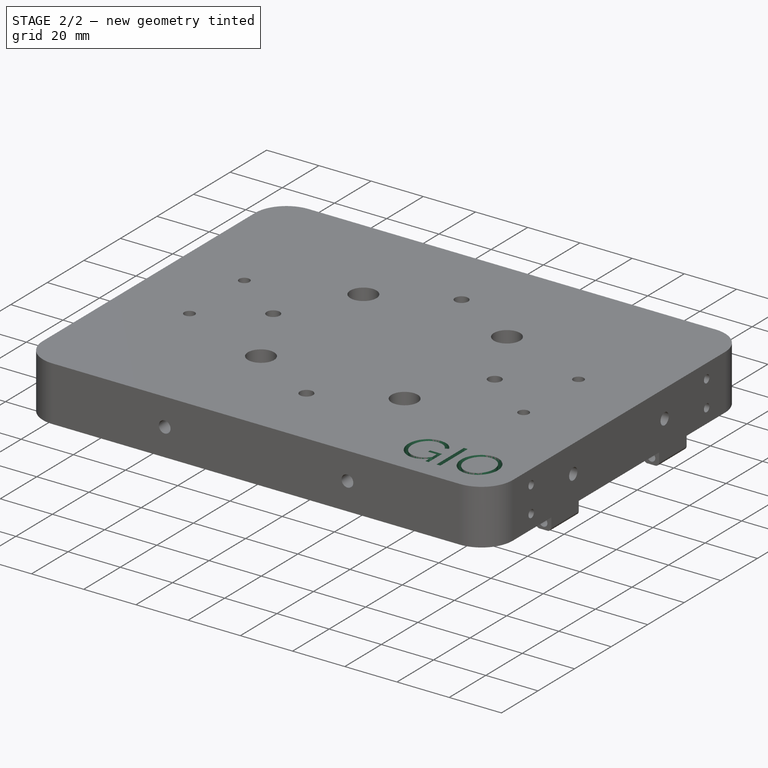
[diagram: stage 2 of 2 — iso view after this stage's code; geometry added in this stage tinted green]
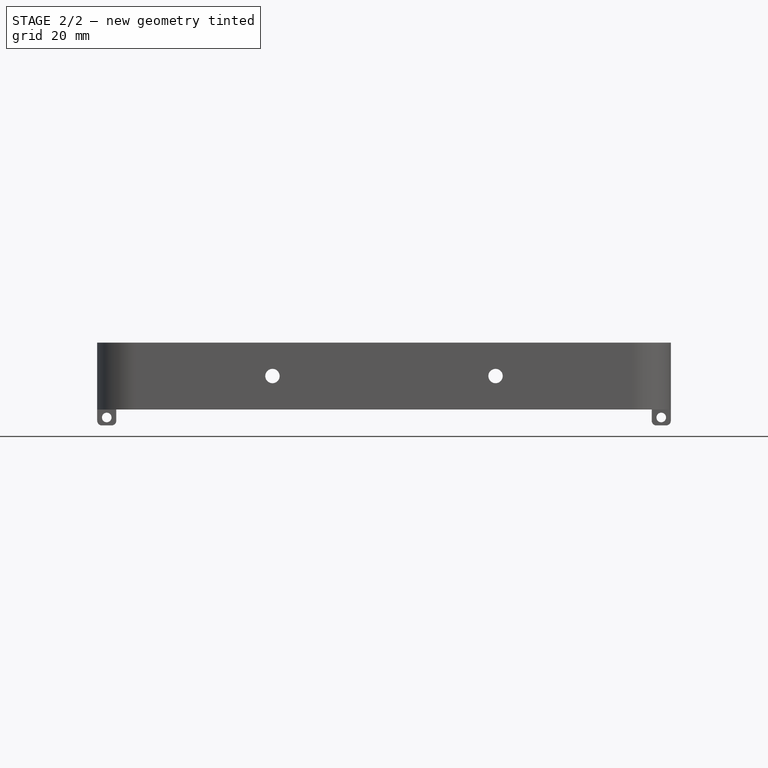
[diagram: stage 2 of 2 — front view after this stage's code; geometry added in this stage tinted green]
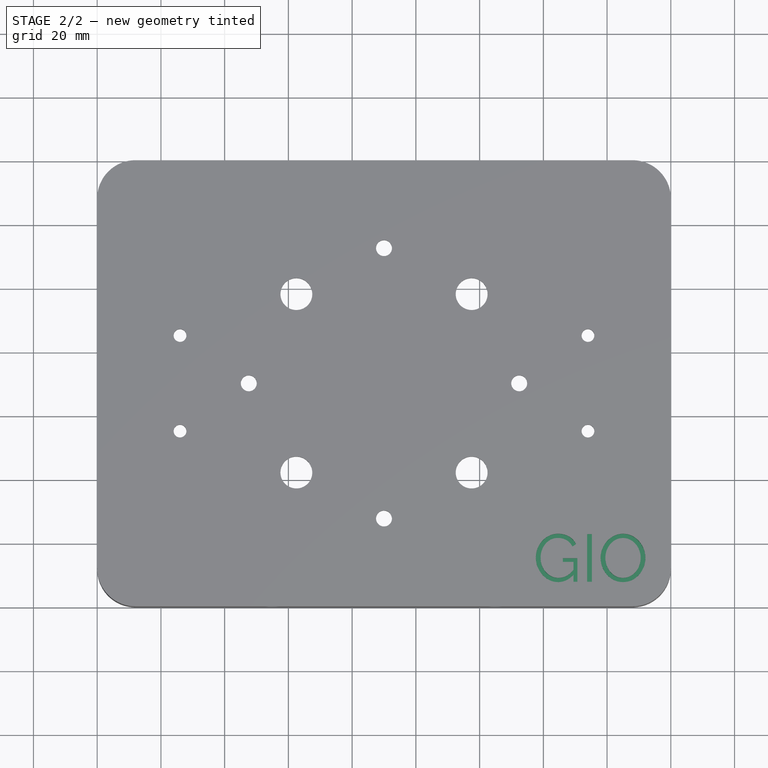
[diagram: stage 2 of 2 — top view after this stage's code; geometry added in this stage tinted green]
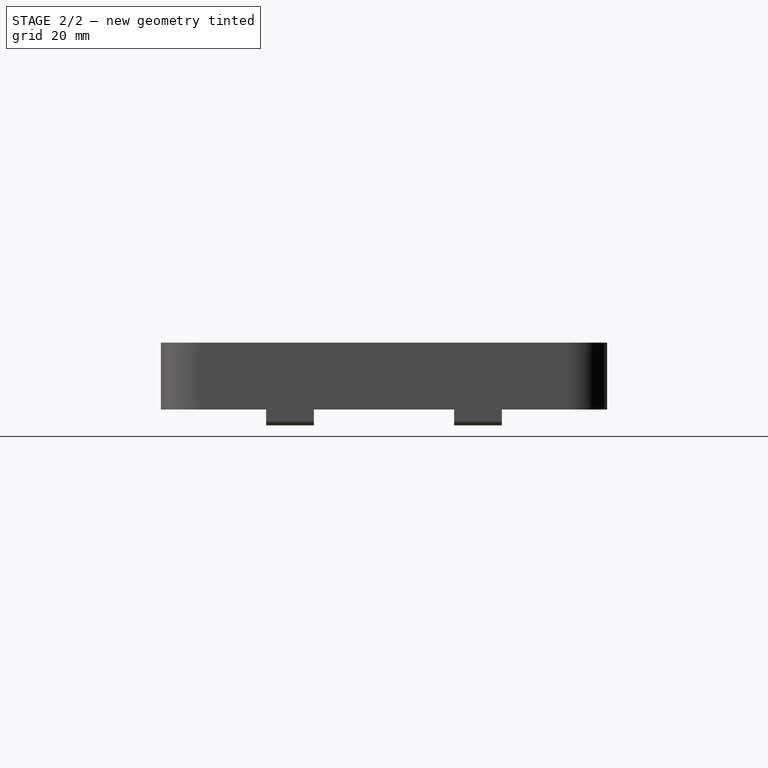
[diagram: stage 2 of 2 — right view after this stage's code; geometry added in this stage tinted green]
FEATURE [Sketcher::SketchObject] Sketch015  label="GIO_Sketch"
  MapMode = 5
  Placement = pos=(0,0,21) rot=(0,0,1;0rad)
  Support = -> [Pocket010]
  sketch-geometry (69):
    g0: BSplineCurve PolesCount=3 KnotsCount=2 Degree=2 IsPeriodic=0
    g1: BSplineCurve PolesCount=3 KnotsCount=2 Degree=2 IsPeriodic=0
    g2: BSplineCurve PolesCount=3 KnotsCount=2 Degree=2 IsPeriodic=0
    g3: BSplineCurve PolesCount=3 KnotsCount=2 Degree=2 IsPeriodic=0
    g4: BSplineCurve PolesCount=3 KnotsCount=2 Degree=2 IsPeriodic=0
    g5: BSplineCurve PolesCount=3 KnotsCount=2 Degree=2 IsPeriodic=0
    g6: BSplineCurve PolesCount=3 KnotsCount=2 Degree=2 IsPeriodic=0
    g7: BSplineCurve PolesCount=3 KnotsCount=2 Degree=2 IsPeriodic=0
    g8: BSplineCurve PolesCount=3 KnotsCount=2 Degree=2 IsPeriodic=0
    g9: BSplineCurve PolesCount=3 KnotsCount=2 Degree=2 IsPeriodic=0
    g10: BSplineCurve PolesCount=3 KnotsCount=2 Degree=2 IsPeriodic=0
    g11: BSplineCurve PolesCount=3 KnotsCount=2 Degree=2 IsPeriodic=0
    g12: BSplineCurve PolesCount=3 KnotsCount=2 Degree=2 IsPeriodic=0
    g13: BSplineCurve PolesCount=2 KnotsCount=2 Degree=1 IsPeriodic=0
    g14: BSplineCurve PolesCount=3 KnotsCount=2 Degree=2 IsPeriodic=0
    g15: BSplineCurve PolesCount=3 KnotsCount=2 Degree=2 IsPeriodic=0
    g16: BSplineCurve PolesCount=3 KnotsCount=2 Degree=2 IsPeriodic=0
    g17: BSplineCurve PolesCount=3 KnotsCount=2 Degree=2 IsPeriodic=0
    g18: BSplineCurve PolesCount=3 KnotsCount=2 Degree=2 IsPeriodic=0
    g19: BSplineCurve PolesCount=3 KnotsCount=2 Degree=2 IsPeriodic=0
    g20: BSplineCurve PolesCount=3 KnotsCount=2 Degree=2 IsPeriodic=0
    g21: BSplineCurve PolesCount=3 KnotsCount=2 Degree=2 IsPeriodic=0
    g22: BSplineCurve PolesCount=3 KnotsCount=2 Degree=2 IsPeriodic=0
    g23: BSplineCurve PolesCount=3 KnotsCount=2 Degree=2 IsPeriodic=0
    g24: BSplineCurve PolesCount=3 KnotsCount=2 Degree=2 IsPeriodic=0
    g25: BSplineCurve PolesCount=3 KnotsCount=2 Degree=2 IsPeriodic=0
    g26: BSplineCurve PolesCount=2 KnotsCount=2 Degree=1 IsPeriodic=0
    g27: BSplineCurve PolesCount=2 KnotsCount=2 Degree=1 IsPeriodic=0
    g28: BSplineCurve PolesCount=2 KnotsCount=2 Degree=1 IsPeriodic=0
    g29: BSplineCurve PolesCount=2 KnotsCount=2 Degree=1 IsPeriodic=0
    g30: BSplineCurve PolesCount=2 KnotsCount=2 Degree=1 IsPeriodic=0
    g31: BSplineCurve PolesCount=2 KnotsCount=2 Degree=1 IsPeriodic=0
    g32: BSplineCurve PolesCount=2 KnotsCount=2 Degree=1 IsPeriodic=0
    g33: BSplineCurve PolesCount=2 KnotsCount=2 Degree=1 IsPeriodic=0
    g34: BSplineCurve PolesCount=2 KnotsCount=2 Degree=1 IsPeriodic=0
    g35: BSplineCurve PolesCount=2 KnotsCount=2 Degree=1 IsPeriodic=0
    g36: BSplineCurve PolesCount=2 KnotsCount=2 Degree=1 IsPeriodic=0
    g37: BSplineCurve PolesCount=3 KnotsCount=2 Degree=2 IsPeriodic=0
    g38: BSplineCurve PolesCount=3 KnotsCount=2 Degree=2 IsPeriodic=0
    g39: BSplineCurve PolesCount=3 KnotsCount=2 Degree=2 IsPeriodic=0
    g40: BSplineCurve PolesCount=3 KnotsCount=2 Degree=2 IsPeriodic=0
    g41: BSplineCurve PolesCount=3 KnotsCount=2 Degree=2 IsPeriodic=0
    g42: BSplineCurve PolesCount=3 KnotsCount=2 Degree=2 IsPeriodic=0
    g43: BSplineCurve PolesCount=3 KnotsCount=2 Degree=2 IsPeriodic=0
    g44: BSplineCurve PolesCount=3 KnotsCount=2 Degree=2 IsPeriodic=0
    g45: BSplineCurve PolesCount=3 KnotsCount=2 Degree=2 IsPeriodic=0
    g46: BSplineCurve PolesCount=3 KnotsCount=2 Degree=2 IsPeriodic=0
    g47: BSplineCurve PolesCount=3 KnotsCount=2 Degree=2 IsPeriodic=0
    g48: BSplineCurve PolesCount=3 KnotsCount=2 Degree=2 IsPeriodic=0
    g49: BSplineCurve PolesCount=3 KnotsCount=2 Degree=2 IsPeriodic=0
    g50: BSplineCurve PolesCount=3 KnotsCount=2 Degree=2 IsPeriodic=0
    g51: BSplineCurve PolesCount=3 KnotsCount=2 Degree=2 IsPeriodic=0
    g52: BSplineCurve PolesCount=3 KnotsCount=2 Degree=2 IsPeriodic=0
    g53: BSplineCurve PolesCount=3 KnotsCount=2 Degree=2 IsPeriodic=0
    g54: BSplineCurve PolesCount=3 KnotsCount=2 Degree=2 IsPeriodic=0
    g55: BSplineCurve PolesCount=3 KnotsCount=2 Degree=2 IsPeriodic=0
    g56: BSplineCurve PolesCount=3 KnotsCount=2 Degree=2 IsPeriodic=0
    g57: BSplineCurve PolesCount=3 KnotsCount=2 Degree=2 IsPeriodic=0
    g58: BSplineCurve PolesCount=3 KnotsCount=2 Degree=2 IsPeriodic=0
    g59: BSplineCurve PolesCount=3 KnotsCount=2 Degree=2 IsPeriodic=0
    g60: BSplineCurve PolesCount=3 KnotsCount=2 Degree=2 IsPeriodic=0
    g61: BSplineCurve PolesCount=3 KnotsCount=2 Degree=2 IsPeriodic=0
    g62: BSplineCurve PolesCount=3 KnotsCount=2 Degree=2 IsPeriodic=0
    g63: BSplineCurve PolesCount=3 KnotsCount=2 Degree=2 IsPeriodic=0
    g64: BSplineCurve PolesCount=3 KnotsCount=2 Degree=2 IsPeriodic=0
    g65: BSplineCurve PolesCount=3 KnotsCount=2 Degree=2 IsPeriodic=0
    g66: BSplineCurve PolesCount=3 KnotsCount=2 Degree=2 IsPeriodic=0
    g67: BSplineCurve PolesCount=3 KnotsCount=2 Degree=2 IsPeriodic=0
    g68: BSplineCurve PolesCount=3 KnotsCount=2 Degree=2 IsPeriodic=0
  constraints (69):
    c: Coincident(g0,g1)
    c: Coincident(g1,g2)
    c: Coincident(g2,g3)
    c: Coincident(g3,g4)
    c: Coincident(g4,g5)
    c: Coincident(g5,g6)
    c: Coincident(g6,g7)
    c: Coincident(g7,g8)
    c: Coincident(g8,g9)
    c: Coincident(g9,g10)
    c: Coincident(g10,g11)
    c: Coincident(g11,g12)
    c: Coincident(g12,g13)
    c: Coincident(g13,g14)
    c: Coincident(g14,g15)
    c: Coincident(g15,g16)
    c: Coincident(g16,g17)
    c: Coincident(g17,g18)
    c: Coincident(g18,g19)
    c: Coincident(g19,g20)
    c: Coincident(g20,g21)
    c: Coincident(g21,g22)
    c: Coincident(g22,g23)
    c: Coincident(g23,g24)
    c: Coincident(g24,g25)
    c: Coincident(g25,g26)
    c: Coincident(g26,g27)
    c: Coincident(g27,g28)
    c: Coincident(g28,g29)
    c: Coincident(g29,g30)
    c: Coincident(g30,g31)
    c: Coincident(g31,g32)
    c: Coincident(g32,g0)
    c: Coincident(g33,g34)
    c: Coincident(g34,g35)
    c: Coincident(g35,g36)
    c: Coincident(g36,g33)
    c: Coincident(g37,g38)
    c: Coincident(g38,g39)
    c: Coincident(g39,g40)
    c: Coincident(g40,g41)
    c: Coincident(g41,g42)
    c: Coincident(g42,g43)
    c: Coincident(g43,g44)
    c: Coincident(g44,g45)
    c: Coincident(g45,g46)
    c: Coincident(g46,g47)
    c: Coincident(g47,g48)
    c: Coincident(g48,g49)
    c: Coincident(g49,g50)
    c: Coincident(g50,g51)
    c: Coincident(g51,g52)
    c: Coincident(g52,g37)
    c: Coincident(g53,g54)
    c: Coincident(g54,g55)
    c: Coincident(g55,g56)
    c: Coincident(g56,g57)
    c: Coincident(g57,g58)
    c: Coincident(g58,g59)
    c: Coincident(g59,g60)
    c: Coincident(g60,g61)
    c: Coincident(g61,g62)
    c: Coincident(g62,g63)
    c: Coincident(g63,g64)
    c: Coincident(g64,g65)
    c: Coincident(g65,g66)
    c: Coincident(g66,g67)
    c: Coincident(g67,g68)
    c: Coincident(g68,g53)
FEATURE [PartDesign::Pocket] Pocket011
  BaseFeature = -> Pocket010
  Length = 4
  Length2 = 100
  Profile = -> Sketch015
  Type = 0
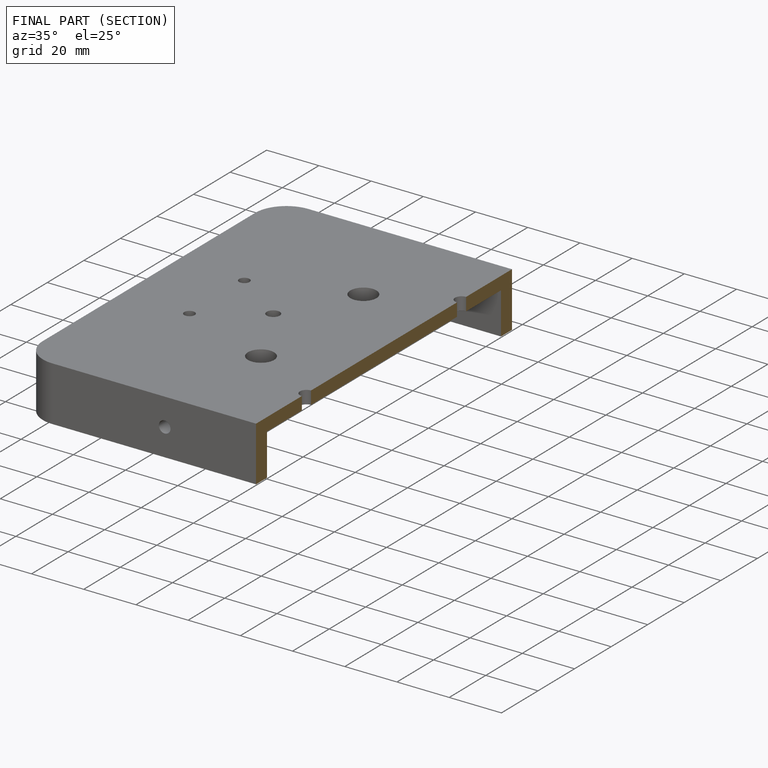
[diagram: finished part — half-section view (interior)]
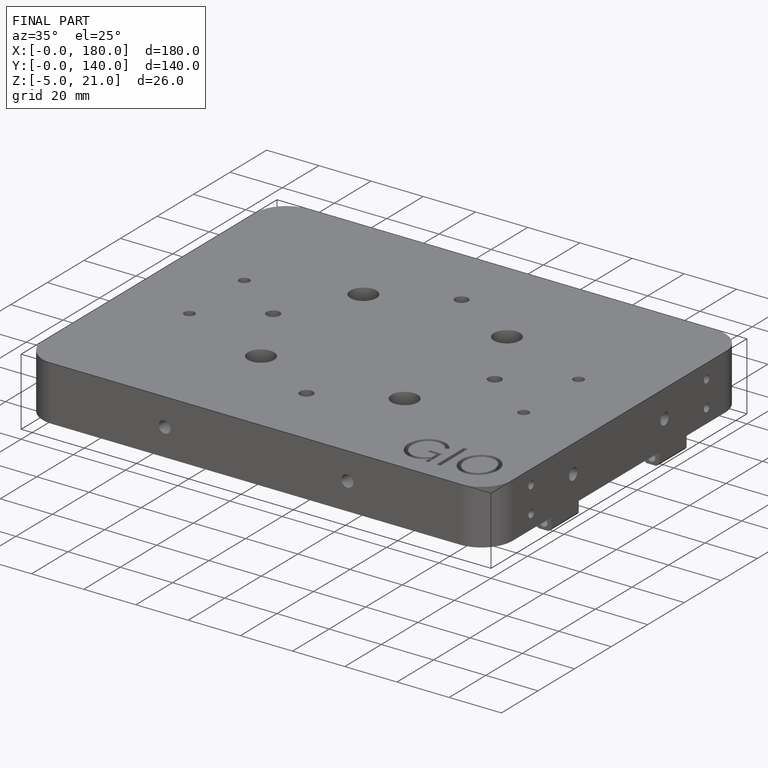
[diagram: finished part — iso view with bounding-box wireframe]
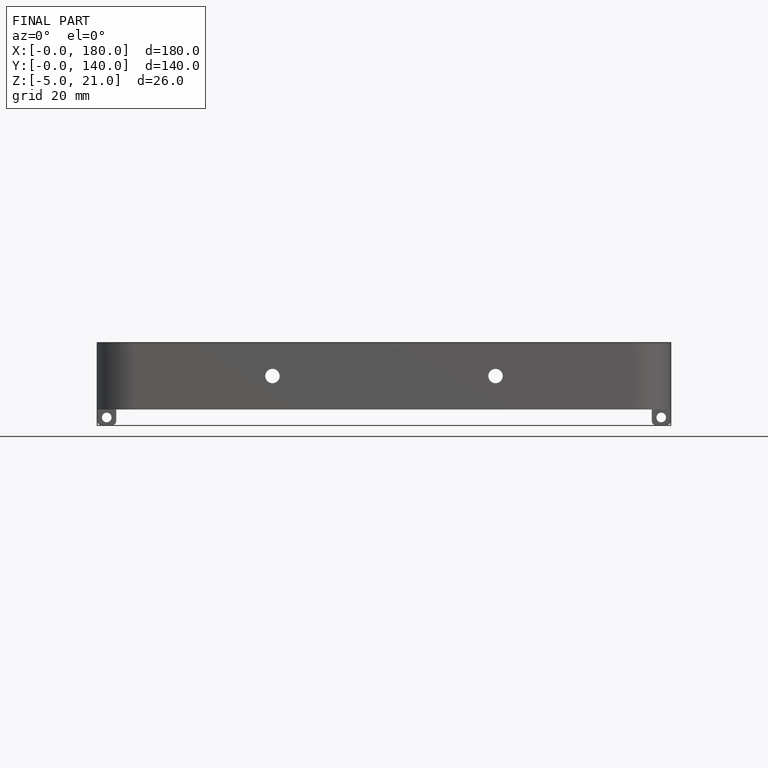
[diagram: finished part — front view with bounding-box wireframe]
